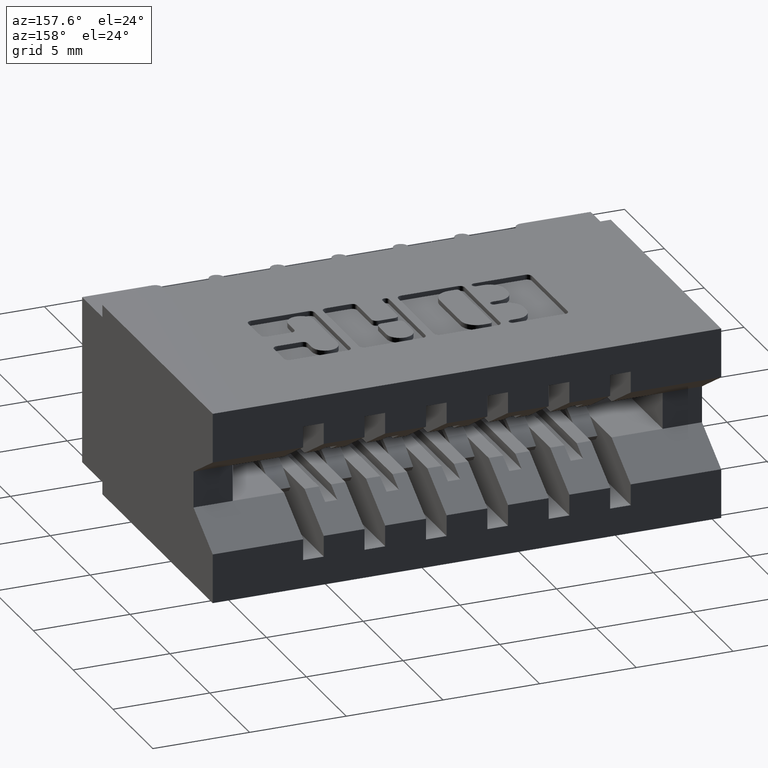
[diagram: clean part render]
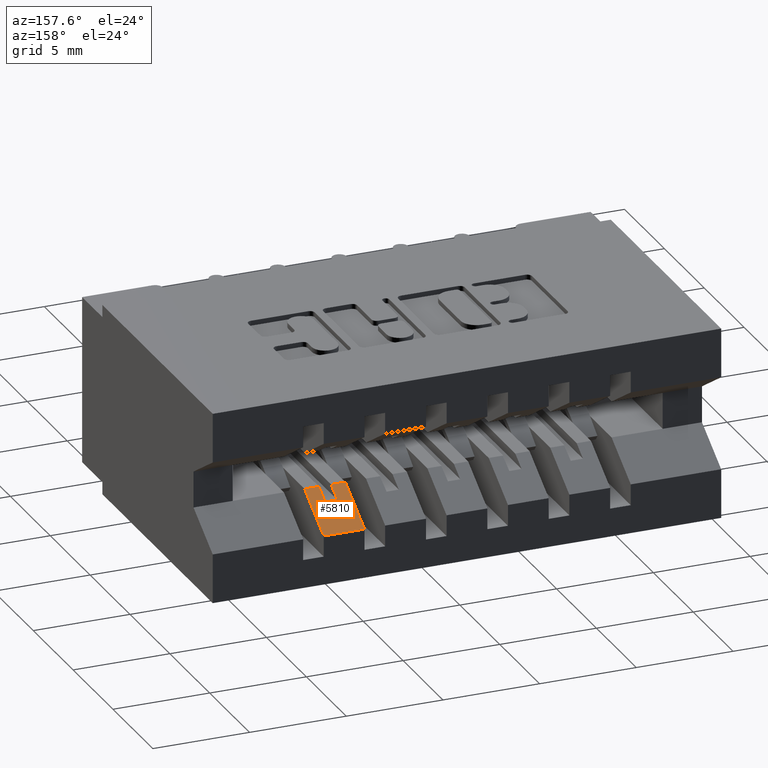
[diagram: same view with one face highlighted and labeled with its STEP entity id]
A machine part, auxiliary view. The second image highlights one B-rep face of the part: STEP entity #5810.
In plain terms, the highlighted planar face has unit normal (0, 0.5194, 0.8545).
Its self-contained STEP definition (entity closure, byte-faithful):
#374 = DIRECTION ( 'NONE',  ( -1.000000000000000000, 0.0000000000000000000, 0.0000000000000000000 ) ) ;
#840 = EDGE_CURVE ( 'NONE', #2998, #10490, #2400, .T. ) ;
#1001 = AXIS2_PLACEMENT_3D ( 'NONE', #5329, #11081, #8761 ) ;
#1037 = EDGE_CURVE ( 'NONE', #9753, #14045, #13099, .T. ) ;
#1172 = DIRECTION ( 'NONE',  ( -1.000000000000000000, 0.0000000000000000000, 0.0000000000000000000 ) ) ;
#1390 = ORIENTED_EDGE ( 'NONE', *, *, #840, .F. ) ;
#1571 = ORIENTED_EDGE ( 'NONE', *, *, #3965, .F. ) ;
#2101 = CARTESIAN_POINT ( 'NONE',  ( 1.034999999999999920, 0.5812554112554112473, -0.2510000000000000564 ) ) ;
#2230 = CARTESIAN_POINT ( 'NONE',  ( 1.034999999999999920, 0.6449999999999999067, -0.2897500000000000075 ) ) ;
#2287 = DIRECTION ( 'NONE',  ( -1.000000000000000000, 0.0000000000000000000, 0.0000000000000000000 ) ) ;
#2400 = LINE ( 'NONE', #12141, #5573 ) ;
#2566 = CARTESIAN_POINT ( 'NONE',  ( 0.7259999999999995346, 0.6449999999999999067, -0.2897499999999999520 ) ) ;
#2723 = VECTOR ( 'NONE', #5411, 39.37007874015748854 ) ;
#2955 = EDGE_LOOP ( 'NONE', ( #2974, #1571, #7336, #11512, #14162, #1390, #7255, #8331 ) ) ;
#2974 = ORIENTED_EDGE ( 'NONE', *, *, #4307, .F. ) ;
#2998 = VERTEX_POINT ( 'NONE', #11998 ) ;
#3308 = DIRECTION ( 'NONE',  ( -1.238924702507070723E-16, 0.8545023705661022317, -0.5194474936862353287 ) ) ;
#3426 = VECTOR ( 'NONE', #4403, 39.37007874015748143 ) ;
#3612 = VERTEX_POINT ( 'NONE', #2566 ) ;
#3965 = EDGE_CURVE ( 'NONE', #9753, #6415, #13446, .T. ) ;
#4119 = CARTESIAN_POINT ( 'NONE',  ( 0.7549999999999995604, 0.5499999999999999334, -0.2320000000000000395 ) ) ;
#4212 = EDGE_CURVE ( 'NONE', #4494, #5208, #14206, .T. ) ;
#4234 = CARTESIAN_POINT ( 'NONE',  ( 0.7259999999999995346, 0.5499999999999999334, -0.2320000000000000118 ) ) ;
#4307 = EDGE_CURVE ( 'NONE', #6415, #4494, #7594, .T. ) ;
#4403 = DIRECTION ( 'NONE',  ( -1.238924702507070723E-16, 0.8545023705661022317, -0.5194474936862353287 ) ) ;
#4494 = VERTEX_POINT ( 'NONE', #8427 ) ;
#5174 = CARTESIAN_POINT ( 'NONE',  ( 0.8089999999999997193, 0.5499999999999999334, -0.2320000000000000118 ) ) ;
#5208 = VERTEX_POINT ( 'NONE', #11192 ) ;
#5329 = CARTESIAN_POINT ( 'NONE',  ( 1.034999999999999920, 0.5499999999999999334, -0.2320000000000000395 ) ) ;
#5411 = DIRECTION ( 'NONE',  ( 0.0000000000000000000, -0.8545023705661023428, 0.5194474936862352177 ) ) ;
#5554 = CARTESIAN_POINT ( 'NONE',  ( 0.7259999999999997566, 0.5499999999999999334, -0.2320000000000000118 ) ) ;
#5573 = VECTOR ( 'NONE', #1172, 39.37007874015748143 ) ;
#5810 = ADVANCED_FACE ( 'NONE', ( #8677 ), #13089, .T. ) ;
#6008 = CARTESIAN_POINT ( 'NONE',  ( 0.7799999999999995826, 0.5499999999999998224, -0.2320000000000000395 ) ) ;
#6415 = VERTEX_POINT ( 'NONE', #6008 ) ;
#6446 = CARTESIAN_POINT ( 'NONE',  ( 0.8089999999999997193, 0.6449999999999999067, -0.2897500000000000075 ) ) ;
#6484 = LINE ( 'NONE', #4119, #2723 ) ;
#7255 = ORIENTED_EDGE ( 'NONE', *, *, #9186, .F. ) ;
#7336 = ORIENTED_EDGE ( 'NONE', *, *, #1037, .T. ) ;
#7594 = LINE ( 'NONE', #12065, #8033 ) ;
#7654 = EDGE_CURVE ( 'NONE', #10490, #3612, #9684, .T. ) ;
#7780 = VECTOR ( 'NONE', #3308, 39.37007874015748143 ) ;
#7817 = VECTOR ( 'NONE', #374, 39.37007874015748143 ) ;
#8033 = VECTOR ( 'NONE', #11130, 39.37007874015748854 ) ;
#8331 = ORIENTED_EDGE ( 'NONE', *, *, #4212, .F. ) ;
#8427 = CARTESIAN_POINT ( 'NONE',  ( 0.7799999999999995826, 0.5812554112554111363, -0.2510000000000000564 ) ) ;
#8677 = FACE_OUTER_BOUND ( 'NONE', #2955, .T. ) ;
#8761 = DIRECTION ( 'NONE',  ( 0.0000000000000000000, -0.8545023705661022317, 0.5194474936862353287 ) ) ;
#8914 = VECTOR ( 'NONE', #2287, 39.37007874015748143 ) ;
#9186 = EDGE_CURVE ( 'NONE', #5208, #2998, #6484, .T. ) ;
#9684 = LINE ( 'NONE', #4234, #7780 ) ;
#9753 = VERTEX_POINT ( 'NONE', #5174 ) ;
#9848 = CARTESIAN_POINT ( 'NONE',  ( 0.8089999999999997193, 0.5499999999999999334, -0.2320000000000000395 ) ) ;
#10018 = EDGE_CURVE ( 'NONE', #14045, #3612, #14069, .T. ) ;
#10330 = VECTOR ( 'NONE', #13069, 39.37007874015748143 ) ;
#10490 = VERTEX_POINT ( 'NONE', #5554 ) ;
#11081 = DIRECTION ( 'NONE',  ( 0.0000000000000000000, 0.5194474936862354397, 0.8545023705661023428 ) ) ;
#11130 = DIRECTION ( 'NONE',  ( -0.0000000000000000000, 0.8545023705661023428, -0.5194474936862352177 ) ) ;
#11192 = CARTESIAN_POINT ( 'NONE',  ( 0.7549999999999995604, 0.5812554112554111363, -0.2510000000000000564 ) ) ;
#11281 = CARTESIAN_POINT ( 'NONE',  ( 1.034999999999999920, 0.5499999999999999334, -0.2320000000000000395 ) ) ;
#11512 = ORIENTED_EDGE ( 'NONE', *, *, #10018, .T. ) ;
#11998 = CARTESIAN_POINT ( 'NONE',  ( 0.7549999999999995604, 0.5499999999999999334, -0.2320000000000000395 ) ) ;
#12065 = CARTESIAN_POINT ( 'NONE',  ( 0.7799999999999995826, 0.5499999999999999334, -0.2320000000000000395 ) ) ;
#12141 = CARTESIAN_POINT ( 'NONE',  ( 1.034999999999999920, 0.5499999999999999334, -0.2320000000000000395 ) ) ;
#13069 = DIRECTION ( 'NONE',  ( -1.000000000000000000, 0.0000000000000000000, 0.0000000000000000000 ) ) ;
#13089 = PLANE ( 'NONE',  #1001 ) ;
#13099 = LINE ( 'NONE', #9848, #3426 ) ;
#13446 = LINE ( 'NONE', #11281, #7817 ) ;
#14045 = VERTEX_POINT ( 'NONE', #6446 ) ;
#14069 = LINE ( 'NONE', #2230, #8914 ) ;
#14162 = ORIENTED_EDGE ( 'NONE', *, *, #7654, .F. ) ;
#14206 = LINE ( 'NONE', #2101, #10330 ) ;